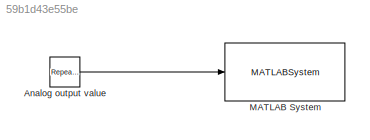
MODEL slx_59b1d43e55be
KIND model
CONFIG AbsTol = auto
CONFIG FixedStep = auto
CONFIG MaxStep = auto
CONFIG MinStep = auto
CONFIG RelTol = 1e-3
CONFIG SampleTimeConstraint = Unconstrained
CONFIG Solver = ode45
CONFIG SolverMode = Auto
CONFIG SolverName = ode45
CONFIG StartTime = 0.0
CONFIG StopTime = 10.0
BLOCK [Reference] Analog output value  REF=simulink/Sources/Repeating
Sequence
Stair
  ConRadixGroup = Best Precision: Vector-wise
  LockScale = off
  OutDataType = fixdt(0,8)
  OutDataTypeStr = uint8
  OutMax = []
  OutMin = []
  OutScaling = 2^-12
  OutValues = [20:10:255 255:-10:1]
  OutputDataTypeScalingMode = uint8
  Ports = [0, 1]
  SourceBlock = simulink/Sources/Repeating\nSequence\nStair
  SourceType = Repeating Sequence Stair
  tsamp = 0.01
BLOCK [MATLABSystem] MATLAB System
  MaskDisplay = disp('Analog Output');\nport_label('input',1,'u');
  MaskType = AnalogOutput_arduino
  Pin = 6
  Ports = [1]
  System = AnalogOutput_arduino
LINE Analog output value:1 -> MATLAB System:1
